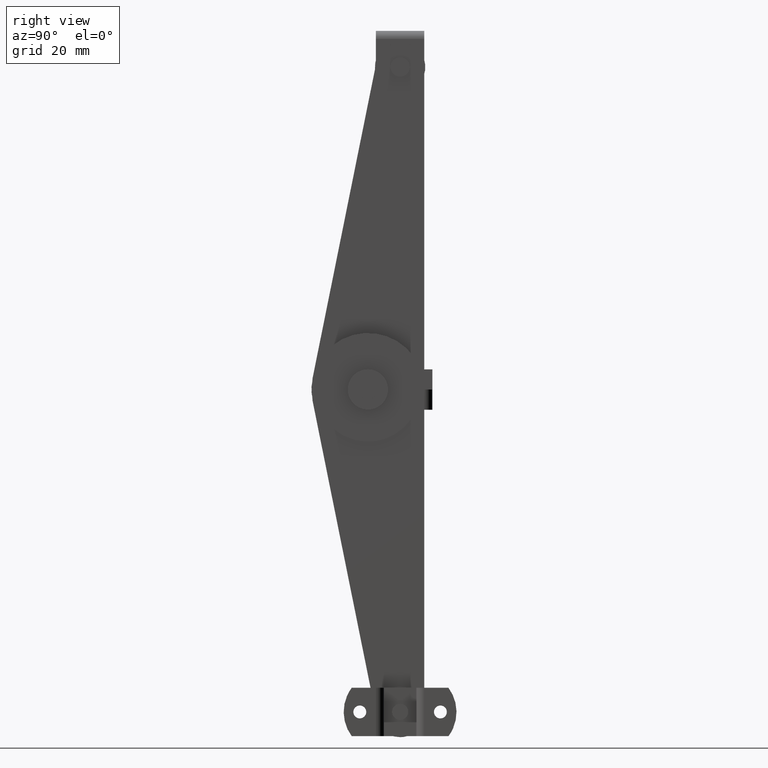
[diagram: clean part render]
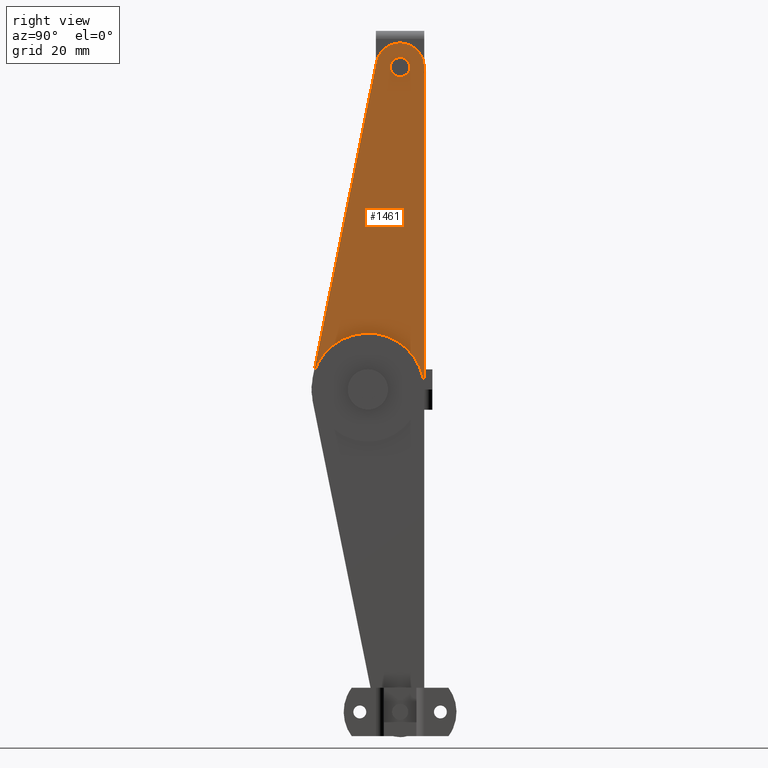
[diagram: same view with one face highlighted and labeled with its STEP entity id]
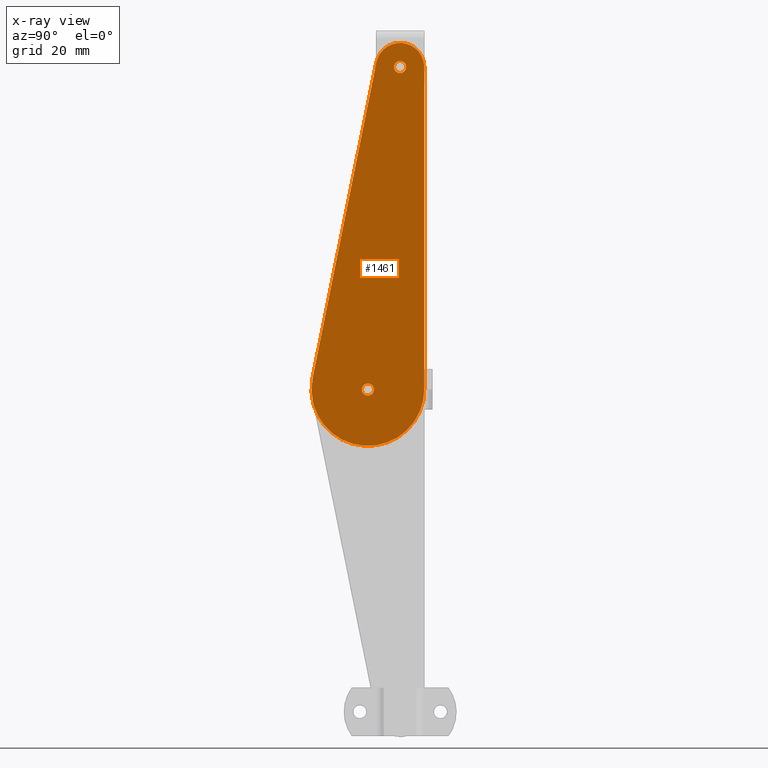
[diagram: x-ray of the same camera — body ghosted, the highlighted face saturated]
A machine part, right view. The second image highlights one B-rep face of the part: STEP entity #1461.
The next image is the same camera in x-ray: the body ghosted, the highlighted face saturated — about 0% of this face is hidden behind the body in this view.
In plain terms, the highlighted face is a freeform B-spline surface patch.
Its self-contained STEP definition (entity closure, byte-faithful):
#887=CARTESIAN_POINT('',(-9.500000633269721,-1.495376000598304,80.117656643609507));
#888=VERTEX_POINT('',#887);
#894=CARTESIAN_POINT('',(-9.500000633269719,-1.183291E-029,78.499968000000095));
#895=VERTEX_POINT('',#894);
#896=CARTESIAN_POINT('',(-9.500000633269721,-1.495376000598304,80.117656643609507));
#897=CARTESIAN_POINT('',(-9.500000633269719,-1.500000000000000,80.058903160529312));
#898=CARTESIAN_POINT('',(-9.500000633269719,-1.500000000000000,79.999968000000095));
#899=CARTESIAN_POINT('',(-9.500000633269719,-1.500000000000000,78.499968000000109));
#900=CARTESIAN_POINT('',(-9.500000633269719,-1.183291E-029,78.499968000000095));
#908=(BOUNDED_CURVE()B_SPLINE_CURVE(2,(#896,#897,#898,#899,#900),.UNSPECIFIED.,.F.,.U.)B_SPLINE_CURVE_WITH_KNOTS((3,2,3),(0.736331300628724,0.750000000000000,1.0),.UNSPECIFIED.)CURVE()GEOMETRIC_REPRESENTATION_ITEM()RATIONAL_B_SPLINE_CURVE((0.969723356163378,0.983986122576614,1.0,0.707106781186548,1.0))REPRESENTATION_ITEM(''));
#909=EDGE_CURVE('',#888,#895,#908,.T.);
#911=CARTESIAN_POINT('',(-9.500000633269718,1.495376000598306,79.882279356390740));
#912=VERTEX_POINT('',#911);
#913=CARTESIAN_POINT('',(-9.500000633269719,-1.183291E-029,78.499968000000095));
#914=CARTESIAN_POINT('',(-9.500000633269719,1.386585737454566,78.499968000000095));
#915=CARTESIAN_POINT('',(-9.500000633269718,1.495376000598307,79.882279356390740));
#923=(BOUNDED_CURVE()B_SPLINE_CURVE(2,(#913,#914,#915),.UNSPECIFIED.,.F.,.U.)B_SPLINE_CURVE_WITH_KNOTS((3,3),(0.0,0.236331300628731),.UNSPECIFIED.)CURVE()GEOMETRIC_REPRESENTATION_ITEM()RATIONAL_B_SPLINE_CURVE((1.0,0.723120658609925,0.969723356163393))REPRESENTATION_ITEM(''));
#924=EDGE_CURVE('',#895,#912,#923,.T.);
#970=CARTESIAN_POINT('',(-9.500000633269719,-1.183291E-029,81.499968000000109));
#971=VERTEX_POINT('',#970);
#972=CARTESIAN_POINT('',(-9.500000633269718,1.495376000598306,79.882279356390740));
#973=CARTESIAN_POINT('',(-9.500000633269719,1.500000000000000,79.941032839470907));
#974=CARTESIAN_POINT('',(-9.500000633269719,1.500000000000000,79.999968000000095));
#975=CARTESIAN_POINT('',(-9.500000633269719,1.500000000000000,81.499968000000109));
#976=CARTESIAN_POINT('',(-9.500000633269719,-1.183291E-029,81.499968000000109));
#984=(BOUNDED_CURVE()B_SPLINE_CURVE(2,(#972,#973,#974,#975,#976),.UNSPECIFIED.,.F.,.U.)B_SPLINE_CURVE_WITH_KNOTS((3,2,3),(0.236331300628731,0.250000000000000,0.500000000000000),.UNSPECIFIED.)CURVE()GEOMETRIC_REPRESENTATION_ITEM()RATIONAL_B_SPLINE_CURVE((0.969723356163393,0.983986122576623,1.0,0.707106781186548,1.0))REPRESENTATION_ITEM(''));
#985=EDGE_CURVE('',#912,#971,#984,.T.);
#987=CARTESIAN_POINT('',(-9.500000633269719,-1.183291E-029,81.499968000000109));
#988=CARTESIAN_POINT('',(-9.500000633269719,-1.386585737454516,81.499968000000109));
#989=CARTESIAN_POINT('',(-9.500000633269721,-1.495376000598304,80.117656643609507));
#997=(BOUNDED_CURVE()B_SPLINE_CURVE(2,(#987,#988,#989),.UNSPECIFIED.,.F.,.U.)B_SPLINE_CURVE_WITH_KNOTS((3,3),(0.500000000000000,0.736331300628725),.UNSPECIFIED.)CURVE()GEOMETRIC_REPRESENTATION_ITEM()RATIONAL_B_SPLINE_CURVE((1.0,0.723120658609932,0.969723356163380))REPRESENTATION_ITEM(''));
#998=EDGE_CURVE('',#971,#888,#997,.T.);
#1069=CARTESIAN_POINT('',(-9.500000633269730,-9.495376000598306,0.117656643609582));
#1070=VERTEX_POINT('',#1069);
#1076=CARTESIAN_POINT('',(-9.500000633269730,-8.0,-1.500031999999806));
#1077=VERTEX_POINT('',#1076);
#1078=CARTESIAN_POINT('',(-9.500000633269730,-9.495376000598307,0.117656643609582));
#1079=CARTESIAN_POINT('',(-9.500000633269730,-9.500000000000000,0.058903160529400));
#1080=CARTESIAN_POINT('',(-9.500000633269730,-9.500000000000000,-0.000031999999806));
#1081=CARTESIAN_POINT('',(-9.500000633269730,-9.500000000000000,-1.500031999999806));
#1082=CARTESIAN_POINT('',(-9.500000633269730,-8.0,-1.500031999999806));
#1090=(BOUNDED_CURVE()B_SPLINE_CURVE(2,(#1078,#1079,#1080,#1081,#1082),.UNSPECIFIED.,.F.,.U.)B_SPLINE_CURVE_WITH_KNOTS((3,2,3),(0.736331300628727,0.750000000000000,1.0),.UNSPECIFIED.)CURVE()GEOMETRIC_REPRESENTATION_ITEM()RATIONAL_B_SPLINE_CURVE((0.969723356163385,0.983986122576618,1.0,0.707106781186548,1.0))REPRESENTATION_ITEM(''));
#1091=EDGE_CURVE('',#1070,#1077,#1090,.T.);
#1093=CARTESIAN_POINT('',(-9.500000633269730,-6.504623999401696,-0.117720643609194));
#1094=VERTEX_POINT('',#1093);
#1095=CARTESIAN_POINT('',(-9.500000633269730,-8.0,-1.500031999999806));
#1096=CARTESIAN_POINT('',(-9.500000633269730,-6.613414262545469,-1.500031999999806));
#1097=CARTESIAN_POINT('',(-9.500000633269730,-6.504623999401696,-0.117720643609194));
#1105=(BOUNDED_CURVE()B_SPLINE_CURVE(2,(#1095,#1096,#1097),.UNSPECIFIED.,.F.,.U.)B_SPLINE_CURVE_WITH_KNOTS((3,3),(0.0,0.236331300628727),.UNSPECIFIED.)CURVE()GEOMETRIC_REPRESENTATION_ITEM()RATIONAL_B_SPLINE_CURVE((1.0,0.723120658609930,0.969723356163385))REPRESENTATION_ITEM(''));
#1106=EDGE_CURVE('',#1077,#1094,#1105,.T.);
#1152=CARTESIAN_POINT('',(-9.500000633269730,-8.0,1.499968000000194));
#1153=VERTEX_POINT('',#1152);
#1154=CARTESIAN_POINT('',(-9.500000633269730,-6.504623999401696,-0.117720643609194));
#1155=CARTESIAN_POINT('',(-9.500000633269730,-6.500000000000001,-0.058967160529012));
#1156=CARTESIAN_POINT('',(-9.500000633269730,-6.500000000000001,-0.000031999999806));
#1157=CARTESIAN_POINT('',(-9.500000633269730,-6.500000000000003,1.499968000000195));
#1158=CARTESIAN_POINT('',(-9.500000633269730,-8.0,1.499968000000194));
#1166=(BOUNDED_CURVE()B_SPLINE_CURVE(2,(#1154,#1155,#1156,#1157,#1158),.UNSPECIFIED.,.F.,.U.)B_SPLINE_CURVE_WITH_KNOTS((3,2,3),(0.236331300628727,0.250000000000000,0.500000000000000),.UNSPECIFIED.)CURVE()GEOMETRIC_REPRESENTATION_ITEM()RATIONAL_B_SPLINE_CURVE((0.969723356163385,0.983986122576618,1.0,0.707106781186548,1.0))REPRESENTATION_ITEM(''));
#1167=EDGE_CURVE('',#1094,#1153,#1166,.T.);
#1169=CARTESIAN_POINT('',(-9.500000633269730,-8.0,1.499968000000194));
#1170=CARTESIAN_POINT('',(-9.500000633269730,-9.386585737454535,1.499968000000194));
#1171=CARTESIAN_POINT('',(-9.500000633269730,-9.495376000598307,0.117656643609582));
#1179=(BOUNDED_CURVE()B_SPLINE_CURVE(2,(#1169,#1170,#1171),.UNSPECIFIED.,.F.,.U.)B_SPLINE_CURVE_WITH_KNOTS((3,3),(0.500000000000000,0.736331300628727),.UNSPECIFIED.)CURVE()GEOMETRIC_REPRESENTATION_ITEM()RATIONAL_B_SPLINE_CURVE((1.0,0.723120658609930,0.969723356163385))REPRESENTATION_ITEM(''));
#1180=EDGE_CURVE('',#1153,#1070,#1179,.T.);
#1301=CARTESIAN_POINT('',(-9.500000633269730,6.000000000000110,4.999968000000200));
#1302=VERTEX_POINT('',#1301);
#1303=CARTESIAN_POINT('',(-9.500000633269730,6.0,-0.000031999999800));
#1304=VERTEX_POINT('',#1303);
#1305=CARTESIAN_POINT('',(-9.500000633269730,6.000000000000110,4.999968000000200));
#1306=CARTESIAN_POINT('',(-9.500000633269730,6.0,-0.000031999999800));
#1307=QUASI_UNIFORM_CURVE('',1,(#1305,#1306),.UNSPECIFIED.,.F.,.U.);
#1308=EDGE_CURVE('',#1302,#1304,#1307,.T.);
#1393=CARTESIAN_POINT('',(-9.500000633269680,7.398435625295589,90.994888049479627));
#1394=CARTESIAN_POINT('',(-9.500000633269680,-23.395146677381419,90.994888049479627));
#1395=CARTESIAN_POINT('',(-9.500000633269680,7.398435625295589,-18.994163850000191));
#1396=CARTESIAN_POINT('',(-9.500000633269680,-23.395146677381419,-18.994163850000191));
#1397=B_SPLINE_SURFACE_WITH_KNOTS('',1,1,((#1393,#1395),(#1394,#1396)),.UNSPECIFIED.,.F.,.F.,.U.,(2,2),(2,2),(0.0,30.793582302677009),(0.0,109.989051899479800),.UNSPECIFIED.);
#1398=CARTESIAN_POINT('',(-9.500000633269719,6.000000000000110,79.999952000000093));
#1399=VERTEX_POINT('',#1398);
#1400=CARTESIAN_POINT('',(-9.500000633269730,6.000000000000110,4.999968000000200));
#1401=CARTESIAN_POINT('',(-9.500000633269719,6.000000000000110,79.999952000000093));
#1402=QUASI_UNIFORM_CURVE('',1,(#1400,#1401),.UNSPECIFIED.,.F.,.U.);
#1403=EDGE_CURVE('',#1302,#1399,#1402,.T.);
#1404=ORIENTED_EDGE('',*,*,#1403,.T.);
#1405=CARTESIAN_POINT('',(-9.500000633269719,-5.878711889223000,81.200263011158498));
#1406=VERTEX_POINT('',#1405);
#1407=CARTESIAN_POINT('',(-9.500000633269719,6.0,79.999952000000093));
#1408=CARTESIAN_POINT('',(-9.500000633269719,6.000000000000001,85.424222417550794));
#1409=CARTESIAN_POINT('',(-9.500000633269719,0.603211681195740,85.969552963855975));
#1410=CARTESIAN_POINT('',(-9.500000633269719,-4.793576637608520,86.514883510161155));
#1411=CARTESIAN_POINT('',(-9.500000633269719,-5.878711889223003,81.200263011158498));
#1419=(BOUNDED_CURVE()B_SPLINE_CURVE(2,(#1407,#1408,#1409,#1410,#1411),.UNSPECIFIED.,.F.,.U.)B_SPLINE_CURVE_WITH_KNOTS((3,2,3),(0.0,0.500000000000000,1.0),.UNSPECIFIED.)CURVE()GEOMETRIC_REPRESENTATION_ITEM()RATIONAL_B_SPLINE_CURVE((1.0,0.741800269681567,1.0,0.741800269681567,1.0))REPRESENTATION_ITEM(''));
#1420=EDGE_CURVE('',#1399,#1406,#1419,.T.);
#1421=ORIENTED_EDGE('',*,*,#1420,.T.);
#1422=CARTESIAN_POINT('',(-9.500000633269730,-21.717654369736650,2.797459482104375));
#1423=VERTEX_POINT('',#1422);
#1424=CARTESIAN_POINT('',(-9.500000633269719,-5.878711889223000,81.200263011158498));
#1425=CARTESIAN_POINT('',(-9.500000633269730,-21.717654369736650,2.797459482104375));
#1426=QUASI_UNIFORM_CURVE('',1,(#1424,#1425),.UNSPECIFIED.,.F.,.U.);
#1427=EDGE_CURVE('',#1406,#1423,#1426,.T.);
#1428=ORIENTED_EDGE('',*,*,#1427,.T.);
#1429=CARTESIAN_POINT('',(-9.500000633269730,-21.717654369736628,2.797459482104371));
#1430=CARTESIAN_POINT('',(-9.500000633269730,-23.460367806835894,-5.748032344609657));
#1431=CARTESIAN_POINT('',(-9.500000633269730,-16.558346955534638,-11.079503891235911));
#1432=CARTESIAN_POINT('',(-9.500000633269730,-9.656326104233390,-16.410975437862160));
#1433=CARTESIAN_POINT('',(-9.500000633269730,-1.828163052116696,-12.566194050870489));
#1434=CARTESIAN_POINT('',(-9.500000633269730,5.999999999999999,-8.721412663878814));
#1435=CARTESIAN_POINT('',(-9.500000633269730,6.0,-0.000031999999806));
#1443=(BOUNDED_CURVE()B_SPLINE_CURVE(2,(#1429,#1430,#1431,#1432,#1433,#1434,#1435),.UNSPECIFIED.,.F.,.U.)B_SPLINE_CURVE_WITH_KNOTS((3,2,2,3),(0.0,0.333333333333333,0.666666666666667,1.0),.UNSPECIFIED.)CURVE()GEOMETRIC_REPRESENTATION_ITEM()RATIONAL_B_SPLINE_CURVE((1.0,0.848777207598489,1.0,0.848777207598489,1.0,0.848777207598489,1.0))REPRESENTATION_ITEM(''));
#1444=EDGE_CURVE('',#1423,#1304,#1443,.T.);
#1445=ORIENTED_EDGE('',*,*,#1444,.T.);
#1446=ORIENTED_EDGE('',*,*,#1308,.F.);
#1447=EDGE_LOOP('',(#1404,#1421,#1428,#1445,#1446));
#1448=FACE_OUTER_BOUND('',#1447,.T.);
#1449=ORIENTED_EDGE('',*,*,#1180,.F.);
#1450=ORIENTED_EDGE('',*,*,#1167,.F.);
#1451=ORIENTED_EDGE('',*,*,#1106,.F.);
#1452=ORIENTED_EDGE('',*,*,#1091,.F.);
#1453=EDGE_LOOP('',(#1449,#1450,#1451,#1452));
#1454=FACE_BOUND('',#1453,.T.);
#1455=ORIENTED_EDGE('',*,*,#998,.F.);
#1456=ORIENTED_EDGE('',*,*,#985,.F.);
#1457=ORIENTED_EDGE('',*,*,#924,.F.);
#1458=ORIENTED_EDGE('',*,*,#909,.F.);
#1459=EDGE_LOOP('',(#1455,#1456,#1457,#1458));
#1460=FACE_BOUND('',#1459,.T.);
#1461=ADVANCED_FACE('',(#1448,#1454,#1460),#1397,.T.);